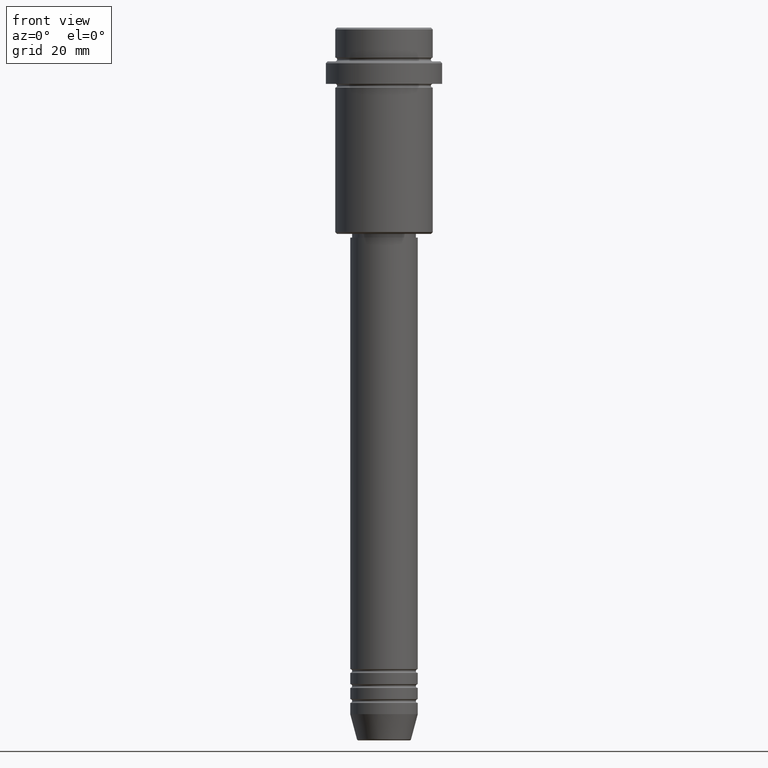
[diagram: clean part render]
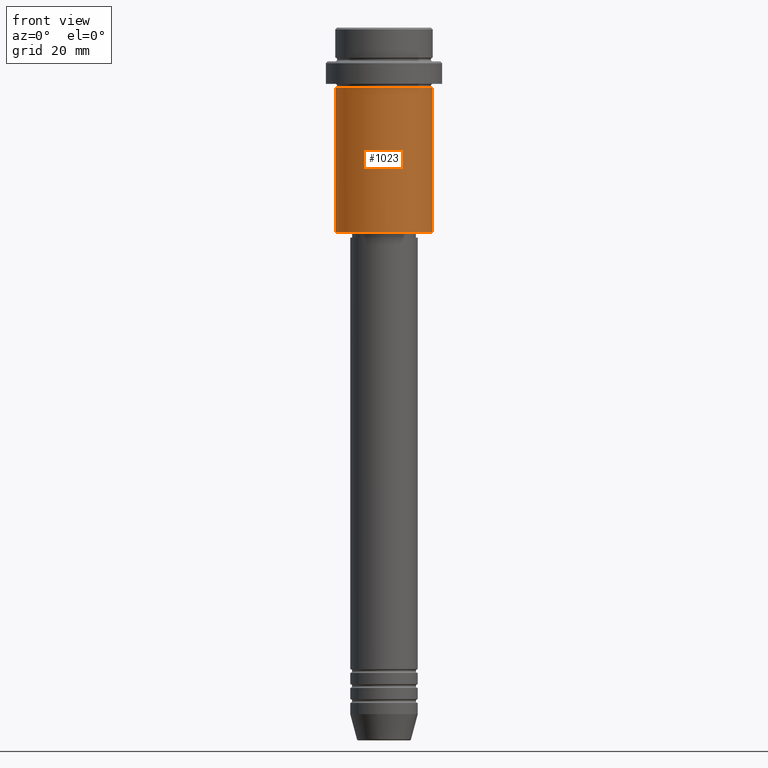
[diagram: same view with one face highlighted and labeled with its STEP entity id]
A machine part, front view. The second image highlights one B-rep face of the part: STEP entity #1023.
In plain terms, the highlighted cylindrical surface (partial cylindrical patch) has radius 13 mm, axis along (-0, -0, 1).
Its self-contained STEP definition (entity closure, byte-faithful):
#15 = DIRECTION ( 'NONE',  ( 1.000000000000000000, 0.000000000000000000, 0.000000000000000000 ) ) ;
#106 = AXIS2_PLACEMENT_3D ( 'NONE', #1237, #694, #1033 ) ;
#149 = VERTEX_POINT ( 'NONE', #800 ) ;
#212 = ORIENTED_EDGE ( 'NONE', *, *, #310, .F. ) ;
#227 = ORIENTED_EDGE ( 'NONE', *, *, #949, .F. ) ;
#236 = CARTESIAN_POINT ( 'NONE',  ( 0.000000000000000000, 0.000000000000000000, 0.000000000000000000 ) ) ;
#301 = VERTEX_POINT ( 'NONE', #1287 ) ;
#303 = LINE ( 'NONE', #1178, #1081 ) ;
#310 = EDGE_CURVE ( 'NONE', #326, #817, #303, .T. ) ;
#326 = VERTEX_POINT ( 'NONE', #1160 ) ;
#404 = CIRCLE ( 'NONE', #983, 13.00000000000000000 ) ;
#515 = ORIENTED_EDGE ( 'NONE', *, *, #990, .T. ) ;
#549 = CIRCLE ( 'NONE', #106, 13.00000000000000000 ) ;
#557 = EDGE_LOOP ( 'NONE', ( #212, #1044, #515, #227 ) ) ;
#566 = CARTESIAN_POINT ( 'NONE',  ( 0.000000000000000000, 0.000000000000000000, -16.00000000000000000 ) ) ;
#641 = VECTOR ( 'NONE', #819, 1000.000000000000000 ) ;
#644 = DIRECTION ( 'NONE',  ( -0.000000000000000000, -0.000000000000000000, 1.000000000000000000 ) ) ;
#651 = EDGE_CURVE ( 'NONE', #326, #149, #549, .T. ) ;
#694 = DIRECTION ( 'NONE',  ( -0.000000000000000000, -0.000000000000000000, 1.000000000000000000 ) ) ;
#793 = FACE_OUTER_BOUND ( 'NONE', #557, .T. ) ;
#800 = CARTESIAN_POINT ( 'NONE',  ( 13.00000000000000000, 0.000000000000000000, -54.49999999999999289 ) ) ;
#807 = CYLINDRICAL_SURFACE ( 'NONE', #1123, 13.00000000000000000 ) ;
#817 = VERTEX_POINT ( 'NONE', #984 ) ;
#819 = DIRECTION ( 'NONE',  ( -0.000000000000000000, -0.000000000000000000, 1.000000000000000000 ) ) ;
#949 = EDGE_CURVE ( 'NONE', #817, #301, #404, .T. ) ;
#983 = AXIS2_PLACEMENT_3D ( 'NONE', #566, #997, #15 ) ;
#984 = CARTESIAN_POINT ( 'NONE',  ( -13.00000000000000000, 1.592040838891559095E-15, -16.00000000000000000 ) ) ;
#990 = EDGE_CURVE ( 'NONE', #149, #301, #1121, .T. ) ;
#997 = DIRECTION ( 'NONE',  ( -0.000000000000000000, -0.000000000000000000, 1.000000000000000000 ) ) ;
#1013 = CARTESIAN_POINT ( 'NONE',  ( 13.00000000000000000, 0.000000000000000000, 0.000000000000000000 ) ) ;
#1023 = ADVANCED_FACE ( 'NONE', ( #793 ), #807, .T. ) ;
#1033 = DIRECTION ( 'NONE',  ( -1.000000000000000000, 0.000000000000000000, 0.000000000000000000 ) ) ;
#1044 = ORIENTED_EDGE ( 'NONE', *, *, #651, .T. ) ;
#1081 = VECTOR ( 'NONE', #644, 1000.000000000000000 ) ;
#1121 = LINE ( 'NONE', #1013, #641 ) ;
#1123 = AXIS2_PLACEMENT_3D ( 'NONE', #236, #1336, #1223 ) ;
#1160 = CARTESIAN_POINT ( 'NONE',  ( -13.00000000000000000, 1.592040838891559095E-15, -54.49999999999999289 ) ) ;
#1178 = CARTESIAN_POINT ( 'NONE',  ( -13.00000000000000000, 1.592040838891559095E-15, 0.000000000000000000 ) ) ;
#1223 = DIRECTION ( 'NONE',  ( 1.000000000000000000, 0.000000000000000000, 0.000000000000000000 ) ) ;
#1237 = CARTESIAN_POINT ( 'NONE',  ( 0.000000000000000000, 0.000000000000000000, -54.49999999999999289 ) ) ;
#1287 = CARTESIAN_POINT ( 'NONE',  ( 13.00000000000000000, 0.000000000000000000, -16.00000000000000000 ) ) ;
#1336 = DIRECTION ( 'NONE',  ( -0.000000000000000000, -0.000000000000000000, 1.000000000000000000 ) ) ;